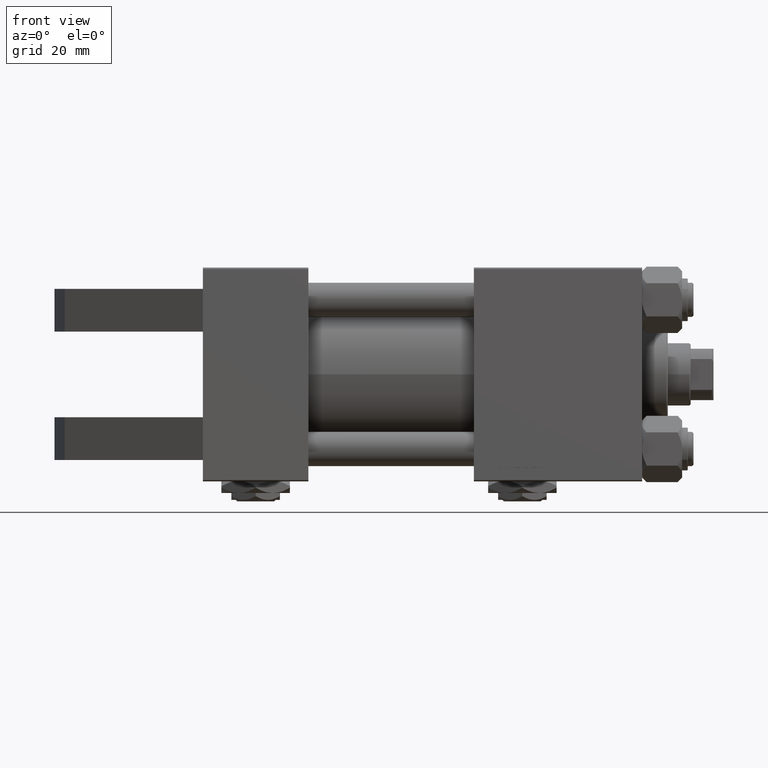
[diagram: clean part render]
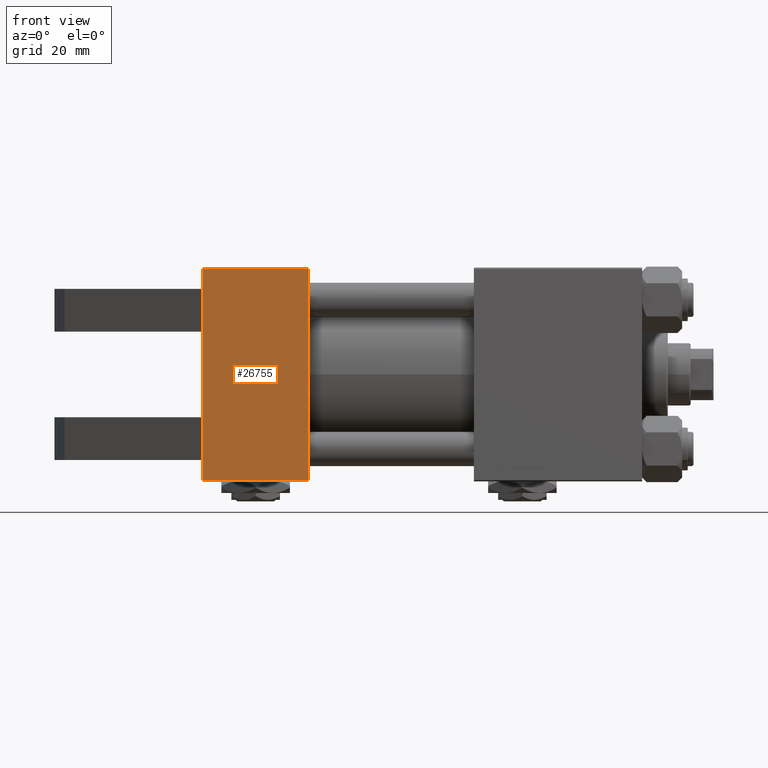
[diagram: same view with one face highlighted and labeled with its STEP entity id]
A machine part, front view. The second image highlights one B-rep face of the part: STEP entity #26755.
In plain terms, the highlighted planar face has unit normal (0, -1, -0).
Its self-contained STEP definition (entity closure, byte-faithful):
#501 = EDGE_CURVE ( 'NONE', #18841, #39094, #39149, .T. ) ;
#642 = CARTESIAN_POINT ( 'NONE',  ( 0.000000000000000000, -37.00000000000002132, -37.50000000000000711 ) ) ;
#3937 = EDGE_CURVE ( 'NONE', #43563, #32733, #36991, .T. ) ;
#4552 = LINE ( 'NONE', #24672, #45957 ) ;
#5207 = LINE ( 'NONE', #44707, #32071 ) ;
#5817 = VECTOR ( 'NONE', #15369, 1000.000000000000000 ) ;
#8290 = DIRECTION ( 'NONE',  ( 1.000000000000000000, 0.000000000000000000, 0.000000000000000000 ) ) ;
#10058 = VECTOR ( 'NONE', #8290, 1000.000000000000000 ) ;
#10689 = DIRECTION ( 'NONE',  ( 0.000000000000000000, 9.251858538542972814E-17, -1.000000000000000000 ) ) ;
#11721 = VERTEX_POINT ( 'NONE', #22783 ) ;
#12918 = DIRECTION ( 'NONE',  ( -0.000000000000000000, 1.000000000000000000, -0.000000000000000000 ) ) ;
#13790 = EDGE_CURVE ( 'NONE', #43758, #43563, #51027, .T. ) ;
#13927 = ORIENTED_EDGE ( 'NONE', *, *, #3937, .F. ) ;
#14659 = CARTESIAN_POINT ( 'NONE',  ( 0.000000000000000000, -15.00000000000000000, -37.50000000000000711 ) ) ;
#15210 = CARTESIAN_POINT ( 'NONE',  ( 0.000000000000000000, 37.49999999999999289, -37.50000000000000000 ) ) ;
#15300 = ORIENTED_EDGE ( 'NONE', *, *, #501, .T. ) ;
#15369 = DIRECTION ( 'NONE',  ( 0.000000000000000000, -1.000000000000000000, -9.251858538542972814E-17 ) ) ;
#16136 = LINE ( 'NONE', #28157, #10058 ) ;
#16863 = CARTESIAN_POINT ( 'NONE',  ( 0.000000000000000000, 30.00000000000000000, -37.50000000000000711 ) ) ;
#17126 = DIRECTION ( 'NONE',  ( -0.000000000000000000, -1.000000000000000000, -0.000000000000000000 ) ) ;
#17620 = VECTOR ( 'NONE', #17126, 1000.000000000000000 ) ;
#18162 = CARTESIAN_POINT ( 'NONE',  ( 0.000000000000000000, 15.00000000000000000, -37.50000000000000000 ) ) ;
#18526 = PLANE ( 'NONE',  #51446 ) ;
#18841 = VERTEX_POINT ( 'NONE', #30951 ) ;
#19270 = CARTESIAN_POINT ( 'NONE',  ( 37.00000000000000000, 37.49999999999999289, -37.50000000000000000 ) ) ;
#19287 = LINE ( 'NONE', #26373, #28342 ) ;
#19295 = CARTESIAN_POINT ( 'NONE',  ( 37.00000000000000000, 37.49999999999999289, -37.50000000000000000 ) ) ;
#21140 = DIRECTION ( 'NONE',  ( 0.000000000000000000, -1.000000000000000000, -9.251858538542972814E-17 ) ) ;
#21900 = LINE ( 'NONE', #33949, #38601 ) ;
#22730 = VECTOR ( 'NONE', #45819, 1000.000000000000000 ) ;
#22783 = CARTESIAN_POINT ( 'NONE',  ( 0.000000000000000000, -30.00000000000000000, -37.50000000000000711 ) ) ;
#23870 = CARTESIAN_POINT ( 'NONE',  ( 0.000000000000000000, 36.99999999999997868, -37.50000000000000000 ) ) ;
#24093 = VERTEX_POINT ( 'NONE', #14659 ) ;
#24448 = CARTESIAN_POINT ( 'NONE',  ( 0.000000000000000000, 30.00000000000000000, -37.50000000000000711 ) ) ;
#24491 = ORIENTED_EDGE ( 'NONE', *, *, #38627, .T. ) ;
#24672 = CARTESIAN_POINT ( 'NONE',  ( 0.000000000000000000, -30.00000000000000000, -37.50000000000000711 ) ) ;
#26124 = ORIENTED_EDGE ( 'NONE', *, *, #43133, .F. ) ;
#26373 = CARTESIAN_POINT ( 'NONE',  ( 0.000000000000000000, -37.00000000000002132, -37.50000000000000711 ) ) ;
#26755 = ADVANCED_FACE ( 'NONE', ( #47019 ), #18526, .T. ) ;
#28090 = ORIENTED_EDGE ( 'NONE', *, *, #13790, .F. ) ;
#28157 = CARTESIAN_POINT ( 'NONE',  ( 37.00000000000000000, 36.99999999999997868, -37.50000000000000000 ) ) ;
#28342 = VECTOR ( 'NONE', #31318, 1000.000000000000000 ) ;
#28925 = CARTESIAN_POINT ( 'NONE',  ( 37.00000000000000000, -37.00000000000002132, -37.50000000000000711 ) ) ;
#29252 = DIRECTION ( 'NONE',  ( 0.000000000000000000, -1.000000000000000000, -9.251858538542972814E-17 ) ) ;
#30951 = CARTESIAN_POINT ( 'NONE',  ( 37.00000000000000000, 36.99999999999997868, -37.50000000000000000 ) ) ;
#31059 = DIRECTION ( 'NONE',  ( 0.000000000000000000, 1.000000000000000000, 9.251858538542972814E-17 ) ) ;
#31318 = DIRECTION ( 'NONE',  ( -1.000000000000000000, 0.000000000000000000, 0.000000000000000000 ) ) ;
#32071 = VECTOR ( 'NONE', #21140, 1000.000000000000000 ) ;
#32733 = VERTEX_POINT ( 'NONE', #18162 ) ;
#33949 = CARTESIAN_POINT ( 'NONE',  ( 0.000000000000000000, 37.49999999999999289, -37.50000000000000000 ) ) ;
#34712 = VERTEX_POINT ( 'NONE', #642 ) ;
#36074 = ORIENTED_EDGE ( 'NONE', *, *, #39059, .T. ) ;
#36336 = ORIENTED_EDGE ( 'NONE', *, *, #48466, .F. ) ;
#36591 = EDGE_CURVE ( 'NONE', #39094, #34712, #19287, .T. ) ;
#36991 = LINE ( 'NONE', #16863, #17620 ) ;
#37821 = ORIENTED_EDGE ( 'NONE', *, *, #36591, .T. ) ;
#38601 = VECTOR ( 'NONE', #29252, 1000.000000000000000 ) ;
#38627 = EDGE_CURVE ( 'NONE', #11721, #24093, #4552, .T. ) ;
#39059 = EDGE_CURVE ( 'NONE', #43758, #18841, #16136, .T. ) ;
#39094 = VERTEX_POINT ( 'NONE', #28925 ) ;
#39149 = LINE ( 'NONE', #19270, #5817 ) ;
#43133 = EDGE_CURVE ( 'NONE', #11721, #34712, #21900, .T. ) ;
#43563 = VERTEX_POINT ( 'NONE', #24448 ) ;
#43758 = VERTEX_POINT ( 'NONE', #23870 ) ;
#44707 = CARTESIAN_POINT ( 'NONE',  ( 0.000000000000000000, 37.49999999999999289, -37.50000000000000000 ) ) ;
#45819 = DIRECTION ( 'NONE',  ( 0.000000000000000000, -1.000000000000000000, -9.251858538542972814E-17 ) ) ;
#45957 = VECTOR ( 'NONE', #12918, 1000.000000000000000 ) ;
#47019 = FACE_OUTER_BOUND ( 'NONE', #48423, .T. ) ;
#48423 = EDGE_LOOP ( 'NONE', ( #28090, #36074, #15300, #37821, #26124, #24491, #36336, #13927 ) ) ;
#48466 = EDGE_CURVE ( 'NONE', #32733, #24093, #5207, .T. ) ;
#51027 = LINE ( 'NONE', #15210, #22730 ) ;
#51446 = AXIS2_PLACEMENT_3D ( 'NONE', #19295, #10689, #31059 ) ;